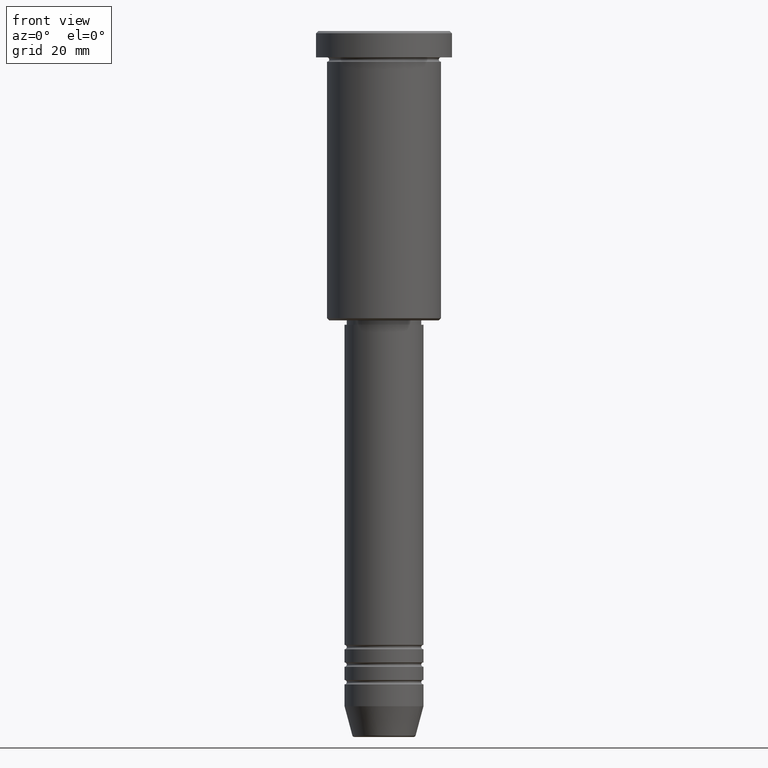
[diagram: clean part render]
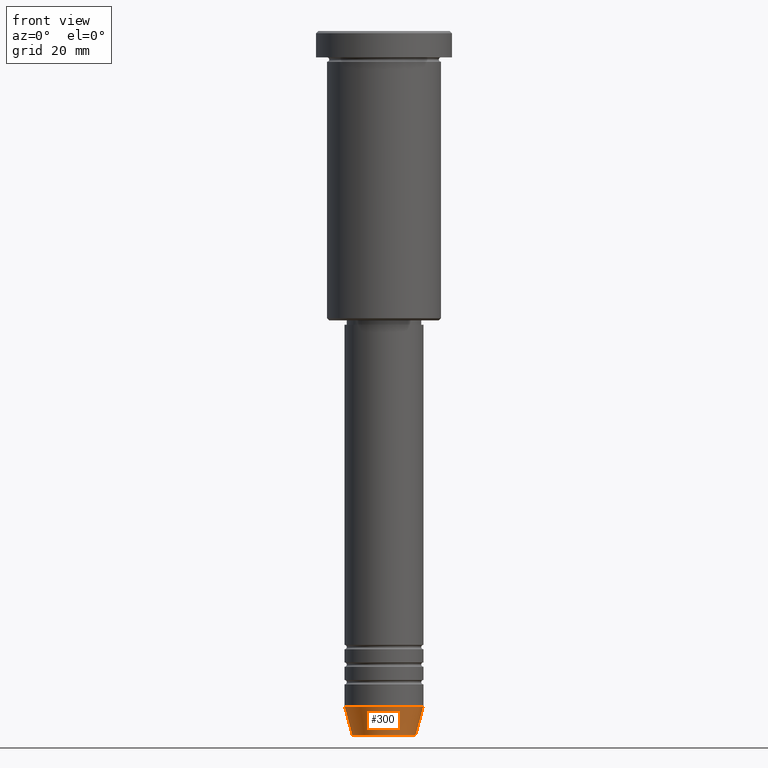
[diagram: same view with one face highlighted and labeled with its STEP entity id]
A machine part, front view. The second image highlights one B-rep face of the part: STEP entity #300.
In plain terms, the highlighted conical surface has half-angle 15 deg.
Its self-contained STEP definition (entity closure, byte-faithful):
#3 = CONICAL_SURFACE ( 'NONE', #216, 9.000000000000000000, 0.2617993877991500740 ) ;
#24 = CARTESIAN_POINT ( 'NONE',  ( 7.223655072137188604, 0.000000000000000000, -160.6294095225512990 ) ) ;
#138 = ORIENTED_EDGE ( 'NONE', *, *, #467, .T. ) ;
#166 = EDGE_CURVE ( 'NONE', #1126, #1003, #391, .T. ) ;
#191 = EDGE_LOOP ( 'NONE', ( #767, #138, #916, #926 ) ) ;
#209 = DIRECTION ( 'NONE',  ( -0.000000000000000000, -0.000000000000000000, 1.000000000000000000 ) ) ;
#216 = AXIS2_PLACEMENT_3D ( 'NONE', #754, #209, #935 ) ;
#219 = DIRECTION ( 'NONE',  ( 0.2588190451025213501, 0.000000000000000000, 0.9659258262890680902 ) ) ;
#254 = CARTESIAN_POINT ( 'NONE',  ( 0.000000000000000000, 0.000000000000000000, -160.6294095225512990 ) ) ;
#290 = CARTESIAN_POINT ( 'NONE',  ( -9.000000000000000000, 1.102182119232617714E-15, -154.0000000000000284 ) ) ;
#300 = ADVANCED_FACE ( 'NONE', ( #1020 ), #3, .T. ) ;
#323 = VECTOR ( 'NONE', #729, 1000.000000000000000 ) ;
#332 = CIRCLE ( 'NONE', #1000, 7.223655072137188604 ) ;
#344 = DIRECTION ( 'NONE',  ( 1.000000000000000000, 0.000000000000000000, 0.000000000000000000 ) ) ;
#391 = CIRCLE ( 'NONE', #1047, 9.000000000000000000 ) ;
#431 = VERTEX_POINT ( 'NONE', #24 ) ;
#461 = VECTOR ( 'NONE', #219, 1000.000000000000000 ) ;
#465 = CARTESIAN_POINT ( 'NONE',  ( -9.000000000000000000, 1.102182119232617714E-15, -154.0000000000000284 ) ) ;
#467 = EDGE_CURVE ( 'NONE', #569, #431, #332, .T. ) ;
#568 = EDGE_CURVE ( 'NONE', #431, #1003, #1132, .T. ) ;
#569 = VERTEX_POINT ( 'NONE', #864 ) ;
#694 = DIRECTION ( 'NONE',  ( 1.000000000000000000, 0.000000000000000000, 0.000000000000000000 ) ) ;
#708 = CARTESIAN_POINT ( 'NONE',  ( 9.000000000000000000, 0.000000000000000000, -154.0000000000000284 ) ) ;
#729 = DIRECTION ( 'NONE',  ( -0.2588190451025213501, 3.169619151431772337E-17, 0.9659258262890680902 ) ) ;
#754 = CARTESIAN_POINT ( 'NONE',  ( 0.000000000000000000, 0.000000000000000000, -154.0000000000000284 ) ) ;
#767 = ORIENTED_EDGE ( 'NONE', *, *, #1017, .F. ) ;
#837 = CARTESIAN_POINT ( 'NONE',  ( 9.000000000000000000, 0.000000000000000000, -154.0000000000000284 ) ) ;
#864 = CARTESIAN_POINT ( 'NONE',  ( -7.223655072137189492, 9.934123627281765110E-16, -160.6294095225512990 ) ) ;
#868 = DIRECTION ( 'NONE',  ( -0.000000000000000000, -0.000000000000000000, 1.000000000000000000 ) ) ;
#887 = LINE ( 'NONE', #465, #323 ) ;
#896 = CARTESIAN_POINT ( 'NONE',  ( 0.000000000000000000, 0.000000000000000000, -154.0000000000000284 ) ) ;
#916 = ORIENTED_EDGE ( 'NONE', *, *, #568, .T. ) ;
#926 = ORIENTED_EDGE ( 'NONE', *, *, #166, .F. ) ;
#935 = DIRECTION ( 'NONE',  ( 1.000000000000000000, 0.000000000000000000, 0.000000000000000000 ) ) ;
#975 = DIRECTION ( 'NONE',  ( -0.000000000000000000, -0.000000000000000000, 1.000000000000000000 ) ) ;
#1000 = AXIS2_PLACEMENT_3D ( 'NONE', #254, #868, #694 ) ;
#1003 = VERTEX_POINT ( 'NONE', #708 ) ;
#1017 = EDGE_CURVE ( 'NONE', #569, #1126, #887, .T. ) ;
#1020 = FACE_OUTER_BOUND ( 'NONE', #191, .T. ) ;
#1047 = AXIS2_PLACEMENT_3D ( 'NONE', #896, #975, #344 ) ;
#1126 = VERTEX_POINT ( 'NONE', #290 ) ;
#1132 = LINE ( 'NONE', #837, #461 ) ;